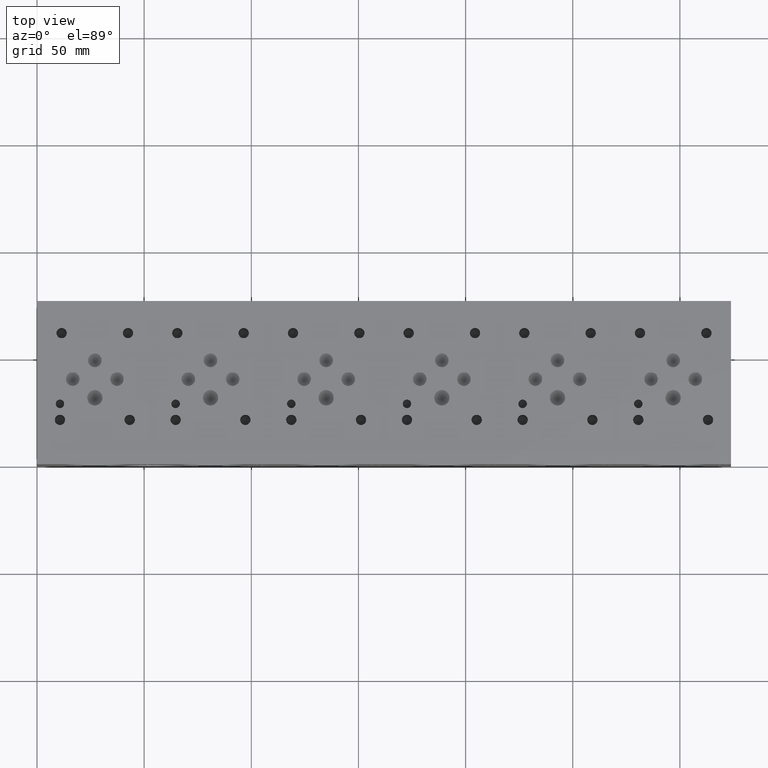
[diagram: clean part render]
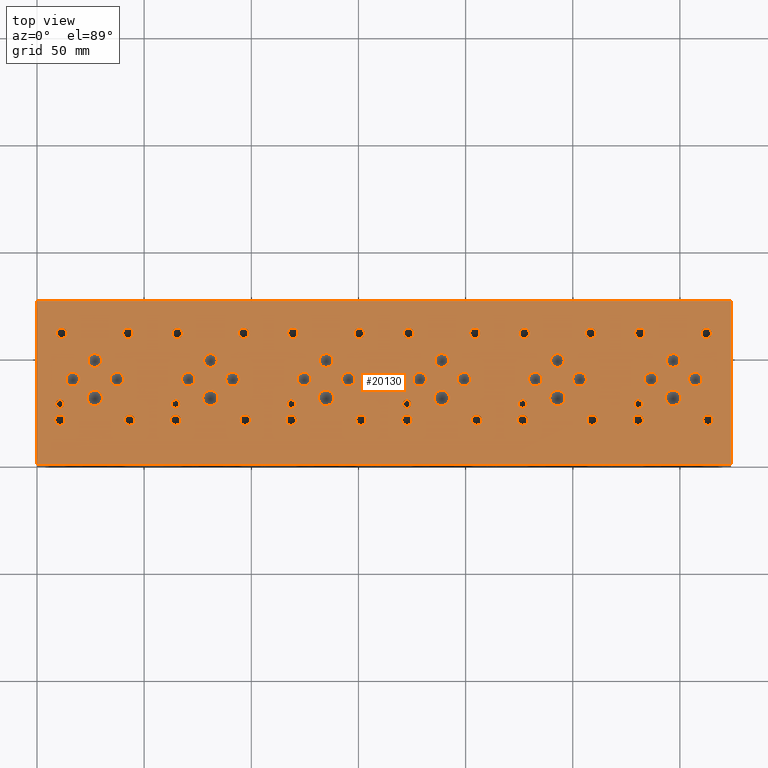
[diagram: same view with one face highlighted and labeled with its STEP entity id]
A machine part, top view. The second image highlights one B-rep face of the part: STEP entity #20130.
In plain terms, the highlighted planar face has unit normal (0, 0, 1).
Its self-contained STEP definition (entity closure, byte-faithful):
#707=CIRCLE('',#21171,1.9812);
#708=CIRCLE('',#21172,1.9812);
#711=CIRCLE('',#21177,1.9812);
#712=CIRCLE('',#21178,1.9812);
#715=CIRCLE('',#21183,1.9812);
#716=CIRCLE('',#21184,1.9812);
#719=CIRCLE('',#21189,1.9812);
#720=CIRCLE('',#21190,1.9812);
#723=CIRCLE('',#21195,1.9812);
#724=CIRCLE('',#21196,1.9812);
#727=CIRCLE('',#21201,3.5687);
#728=CIRCLE('',#21202,3.5687);
#731=CIRCLE('',#21207,3.5687);
#732=CIRCLE('',#21208,3.5687);
#735=CIRCLE('',#21213,3.5687);
#736=CIRCLE('',#21214,3.5687);
#739=CIRCLE('',#21219,3.5687);
#740=CIRCLE('',#21220,3.5687);
#743=CIRCLE('',#21225,3.5687);
#744=CIRCLE('',#21226,3.5687);
#747=CIRCLE('',#21231,3.5687);
#748=CIRCLE('',#21232,3.5687);
#751=CIRCLE('',#21237,3.175);
#752=CIRCLE('',#21238,3.175);
#755=CIRCLE('',#21243,3.175);
#756=CIRCLE('',#21244,3.175);
#759=CIRCLE('',#21249,3.175);
#760=CIRCLE('',#21250,3.175);
#763=CIRCLE('',#21255,3.175);
#764=CIRCLE('',#21256,3.175);
#767=CIRCLE('',#21261,3.175);
#768=CIRCLE('',#21262,3.175);
#771=CIRCLE('',#21267,3.175);
#772=CIRCLE('',#21268,3.175);
#775=CIRCLE('',#21273,3.175);
#776=CIRCLE('',#21274,3.175);
#779=CIRCLE('',#21279,3.175);
#780=CIRCLE('',#21280,3.175);
#783=CIRCLE('',#21285,3.175);
#784=CIRCLE('',#21286,3.175);
#787=CIRCLE('',#21291,3.175);
#788=CIRCLE('',#21292,3.175);
#791=CIRCLE('',#21297,3.175);
#792=CIRCLE('',#21298,3.175);
#795=CIRCLE('',#21303,3.175);
#796=CIRCLE('',#21304,3.175);
#799=CIRCLE('',#21309,3.175);
#800=CIRCLE('',#21310,3.175);
#803=CIRCLE('',#21315,3.175);
#804=CIRCLE('',#21316,3.175);
#807=CIRCLE('',#21321,3.175);
#808=CIRCLE('',#21322,3.175);
#811=CIRCLE('',#21327,3.175);
#812=CIRCLE('',#21328,3.175);
#815=CIRCLE('',#21333,3.175);
#816=CIRCLE('',#21334,3.175);
#819=CIRCLE('',#21339,3.175);
#820=CIRCLE('',#21340,3.175);
#823=CIRCLE('',#21345,1.9812);
#824=CIRCLE('',#21346,1.9812);
#830=CIRCLE('',#21355,2.413);
#831=CIRCLE('',#21356,2.413);
#837=CIRCLE('',#21366,2.413);
#838=CIRCLE('',#21367,2.413);
#844=CIRCLE('',#21377,2.413);
#845=CIRCLE('',#21378,2.413);
#851=CIRCLE('',#21388,2.413);
#852=CIRCLE('',#21389,2.413);
#858=CIRCLE('',#21399,2.413);
#859=CIRCLE('',#21400,2.413);
#865=CIRCLE('',#21410,2.413);
#866=CIRCLE('',#21411,2.413);
#872=CIRCLE('',#21421,2.413);
#873=CIRCLE('',#21422,2.413);
#879=CIRCLE('',#21432,2.413);
#880=CIRCLE('',#21433,2.413);
#886=CIRCLE('',#21443,2.413);
#887=CIRCLE('',#21444,2.413);
#893=CIRCLE('',#21454,2.413);
#894=CIRCLE('',#21455,2.413);
#900=CIRCLE('',#21465,2.413);
#901=CIRCLE('',#21466,2.413);
#907=CIRCLE('',#21476,2.413);
#908=CIRCLE('',#21477,2.413);
#914=CIRCLE('',#21487,2.413);
#915=CIRCLE('',#21488,2.413);
#921=CIRCLE('',#21498,2.413);
#922=CIRCLE('',#21499,2.413);
#928=CIRCLE('',#21509,2.413);
#929=CIRCLE('',#21510,2.413);
#935=CIRCLE('',#21520,2.413);
#936=CIRCLE('',#21521,2.413);
#942=CIRCLE('',#21531,2.413);
#943=CIRCLE('',#21532,2.413);
#949=CIRCLE('',#21542,2.413);
#950=CIRCLE('',#21543,2.413);
#956=CIRCLE('',#21553,2.413);
#957=CIRCLE('',#21554,2.413);
#963=CIRCLE('',#21564,2.413);
#964=CIRCLE('',#21565,2.413);
#970=CIRCLE('',#21575,2.413);
#971=CIRCLE('',#21576,2.413);
#977=CIRCLE('',#21586,2.413);
#978=CIRCLE('',#21587,2.413);
#984=CIRCLE('',#21597,2.413);
#985=CIRCLE('',#21598,2.413);
#991=CIRCLE('',#21608,2.413);
#992=CIRCLE('',#21609,2.413);
#1146=FACE_BOUND('',#3954,.T.);
#1147=FACE_BOUND('',#3955,.T.);
#1148=FACE_BOUND('',#3956,.T.);
#1149=FACE_BOUND('',#3957,.T.);
#1150=FACE_BOUND('',#3958,.T.);
#1151=FACE_BOUND('',#3959,.T.);
#1152=FACE_BOUND('',#3960,.T.);
#1153=FACE_BOUND('',#3961,.T.);
#1154=FACE_BOUND('',#3962,.T.);
#1155=FACE_BOUND('',#3963,.T.);
#1156=FACE_BOUND('',#3964,.T.);
#1157=FACE_BOUND('',#3965,.T.);
#1158=FACE_BOUND('',#3966,.T.);
#1159=FACE_BOUND('',#3967,.T.);
#1160=FACE_BOUND('',#3968,.T.);
#1161=FACE_BOUND('',#3969,.T.);
#1162=FACE_BOUND('',#3970,.T.);
#1163=FACE_BOUND('',#3971,.T.);
#1164=FACE_BOUND('',#3972,.T.);
#1165=FACE_BOUND('',#3973,.T.);
#1166=FACE_BOUND('',#3974,.T.);
#1167=FACE_BOUND('',#3975,.T.);
#1168=FACE_BOUND('',#3976,.T.);
#1169=FACE_BOUND('',#3977,.T.);
#1170=FACE_BOUND('',#3978,.T.);
#1171=FACE_BOUND('',#3979,.T.);
#1172=FACE_BOUND('',#3980,.T.);
#1173=FACE_BOUND('',#3981,.T.);
#1174=FACE_BOUND('',#3982,.T.);
#1175=FACE_BOUND('',#3983,.T.);
#1176=FACE_BOUND('',#3984,.T.);
#1177=FACE_BOUND('',#3985,.T.);
#1178=FACE_BOUND('',#3986,.T.);
#1179=FACE_BOUND('',#3987,.T.);
#1180=FACE_BOUND('',#3988,.T.);
#1181=FACE_BOUND('',#3989,.T.);
#1182=FACE_BOUND('',#3990,.T.);
#1183=FACE_BOUND('',#3991,.T.);
#1184=FACE_BOUND('',#3992,.T.);
#1185=FACE_BOUND('',#3993,.T.);
#1186=FACE_BOUND('',#3994,.T.);
#1187=FACE_BOUND('',#3995,.T.);
#1188=FACE_BOUND('',#3996,.T.);
#1189=FACE_BOUND('',#3997,.T.);
#1190=FACE_BOUND('',#3998,.T.);
#1191=FACE_BOUND('',#3999,.T.);
#1192=FACE_BOUND('',#4000,.T.);
#1193=FACE_BOUND('',#4001,.T.);
#1194=FACE_BOUND('',#4002,.T.);
#1195=FACE_BOUND('',#4003,.T.);
#1196=FACE_BOUND('',#4004,.T.);
#1197=FACE_BOUND('',#4005,.T.);
#1198=FACE_BOUND('',#4006,.T.);
#1199=FACE_BOUND('',#4007,.T.);
#1690=PLANE('',#21615);
#2745=FACE_OUTER_BOUND('',#3953,.T.);
#3953=EDGE_LOOP('',(#18065,#18066,#18067,#18068));
#3954=EDGE_LOOP('',(#18069,#18070));
#3955=EDGE_LOOP('',(#18071,#18072));
#3956=EDGE_LOOP('',(#18073,#18074));
#3957=EDGE_LOOP('',(#18075,#18076));
#3958=EDGE_LOOP('',(#18077,#18078));
#3959=EDGE_LOOP('',(#18079,#18080));
#3960=EDGE_LOOP('',(#18081,#18082));
#3961=EDGE_LOOP('',(#18083,#18084));
#3962=EDGE_LOOP('',(#18085,#18086));
#3963=EDGE_LOOP('',(#18087,#18088));
#3964=EDGE_LOOP('',(#18089,#18090));
#3965=EDGE_LOOP('',(#18091,#18092));
#3966=EDGE_LOOP('',(#18093,#18094));
#3967=EDGE_LOOP('',(#18095,#18096));
#3968=EDGE_LOOP('',(#18097,#18098));
#3969=EDGE_LOOP('',(#18099,#18100));
#3970=EDGE_LOOP('',(#18101,#18102));
#3971=EDGE_LOOP('',(#18103,#18104));
#3972=EDGE_LOOP('',(#18105,#18106));
#3973=EDGE_LOOP('',(#18107,#18108));
#3974=EDGE_LOOP('',(#18109,#18110));
#3975=EDGE_LOOP('',(#18111,#18112));
#3976=EDGE_LOOP('',(#18113,#18114));
#3977=EDGE_LOOP('',(#18115,#18116));
#3978=EDGE_LOOP('',(#18117,#18118));
#3979=EDGE_LOOP('',(#18119,#18120));
#3980=EDGE_LOOP('',(#18121,#18122));
#3981=EDGE_LOOP('',(#18123,#18124));
#3982=EDGE_LOOP('',(#18125,#18126));
#3983=EDGE_LOOP('',(#18127,#18128));
#3984=EDGE_LOOP('',(#18129,#18130));
#3985=EDGE_LOOP('',(#18131,#18132));
#3986=EDGE_LOOP('',(#18133,#18134));
#3987=EDGE_LOOP('',(#18135,#18136));
#3988=EDGE_LOOP('',(#18137,#18138));
#3989=EDGE_LOOP('',(#18139,#18140));
#3990=EDGE_LOOP('',(#18141,#18142));
#3991=EDGE_LOOP('',(#18143,#18144));
#3992=EDGE_LOOP('',(#18145,#18146));
#3993=EDGE_LOOP('',(#18147,#18148));
#3994=EDGE_LOOP('',(#18149,#18150));
#3995=EDGE_LOOP('',(#18151,#18152));
#3996=EDGE_LOOP('',(#18153,#18154));
#3997=EDGE_LOOP('',(#18155,#18156));
#3998=EDGE_LOOP('',(#18157,#18158));
#3999=EDGE_LOOP('',(#18159,#18160));
#4000=EDGE_LOOP('',(#18161,#18162));
#4001=EDGE_LOOP('',(#18163,#18164));
#4002=EDGE_LOOP('',(#18165,#18166));
#4003=EDGE_LOOP('',(#18167,#18168));
#4004=EDGE_LOOP('',(#18169,#18170));
#4005=EDGE_LOOP('',(#18171,#18172));
#4006=EDGE_LOOP('',(#18173,#18174));
#4007=EDGE_LOOP('',(#18175,#18176));
#4055=LINE('',#26536,#5695);
#5251=LINE('',#32931,#6891);
#5309=LINE('',#33202,#6949);
#5648=LINE('',#35287,#7288);
#5695=VECTOR('',#21689,10.);
#6891=VECTOR('',#23699,10.);
#6949=VECTOR('',#23811,10.);
#7288=VECTOR('',#26192,10.);
#7841=VERTEX_POINT('',#26533);
#7842=VERTEX_POINT('',#26535);
#8970=VERTEX_POINT('',#32929);
#9028=VERTEX_POINT('',#33201);
#9415=VERTEX_POINT('',#34374);
#9416=VERTEX_POINT('',#34375);
#9420=VERTEX_POINT('',#34387);
#9421=VERTEX_POINT('',#34388);
#9425=VERTEX_POINT('',#34400);
#9426=VERTEX_POINT('',#34401);
#9430=VERTEX_POINT('',#34413);
#9431=VERTEX_POINT('',#34414);
#9435=VERTEX_POINT('',#34426);
#9436=VERTEX_POINT('',#34427);
#9440=VERTEX_POINT('',#34439);
#9441=VERTEX_POINT('',#34440);
#9445=VERTEX_POINT('',#34452);
#9446=VERTEX_POINT('',#34453);
#9450=VERTEX_POINT('',#34465);
#9451=VERTEX_POINT('',#34466);
#9455=VERTEX_POINT('',#34478);
#9456=VERTEX_POINT('',#34479);
#9460=VERTEX_POINT('',#34491);
#9461=VERTEX_POINT('',#34492);
#9465=VERTEX_POINT('',#34504);
#9466=VERTEX_POINT('',#34505);
#9470=VERTEX_POINT('',#34517);
#9471=VERTEX_POINT('',#34518);
#9475=VERTEX_POINT('',#34530);
#9476=VERTEX_POINT('',#34531);
#9480=VERTEX_POINT('',#34543);
#9481=VERTEX_POINT('',#34544);
#9485=VERTEX_POINT('',#34556);
#9486=VERTEX_POINT('',#34557);
#9490=VERTEX_POINT('',#34569);
#9491=VERTEX_POINT('',#34570);
#9495=VERTEX_POINT('',#34582);
#9496=VERTEX_POINT('',#34583);
#9500=VERTEX_POINT('',#34595);
#9501=VERTEX_POINT('',#34596);
#9505=VERTEX_POINT('',#34608);
#9506=VERTEX_POINT('',#34609);
#9510=VERTEX_POINT('',#34621);
#9511=VERTEX_POINT('',#34622);
#9515=VERTEX_POINT('',#34634);
#9516=VERTEX_POINT('',#34635);
#9520=VERTEX_POINT('',#34647);
#9521=VERTEX_POINT('',#34648);
#9525=VERTEX_POINT('',#34660);
#9526=VERTEX_POINT('',#34661);
#9530=VERTEX_POINT('',#34673);
#9531=VERTEX_POINT('',#34674);
#9535=VERTEX_POINT('',#34686);
#9536=VERTEX_POINT('',#34687);
#9540=VERTEX_POINT('',#34699);
#9541=VERTEX_POINT('',#34700);
#9545=VERTEX_POINT('',#34712);
#9546=VERTEX_POINT('',#34713);
#9550=VERTEX_POINT('',#34725);
#9551=VERTEX_POINT('',#34726);
#9555=VERTEX_POINT('',#34738);
#9556=VERTEX_POINT('',#34739);
#9560=VERTEX_POINT('',#34751);
#9561=VERTEX_POINT('',#34752);
#9568=VERTEX_POINT('',#34771);
#9569=VERTEX_POINT('',#34772);
#9576=VERTEX_POINT('',#34793);
#9577=VERTEX_POINT('',#34794);
#9584=VERTEX_POINT('',#34815);
#9585=VERTEX_POINT('',#34816);
#9592=VERTEX_POINT('',#34837);
#9593=VERTEX_POINT('',#34838);
#9600=VERTEX_POINT('',#34859);
#9601=VERTEX_POINT('',#34860);
#9608=VERTEX_POINT('',#34881);
#9609=VERTEX_POINT('',#34882);
#9616=VERTEX_POINT('',#34903);
#9617=VERTEX_POINT('',#34904);
#9624=VERTEX_POINT('',#34925);
#9625=VERTEX_POINT('',#34926);
#9632=VERTEX_POINT('',#34947);
#9633=VERTEX_POINT('',#34948);
#9640=VERTEX_POINT('',#34969);
#9641=VERTEX_POINT('',#34970);
#9648=VERTEX_POINT('',#34991);
#9649=VERTEX_POINT('',#34992);
#9656=VERTEX_POINT('',#35013);
#9657=VERTEX_POINT('',#35014);
#9664=VERTEX_POINT('',#35035);
#9665=VERTEX_POINT('',#35036);
#9672=VERTEX_POINT('',#35057);
#9673=VERTEX_POINT('',#35058);
#9680=VERTEX_POINT('',#35079);
#9681=VERTEX_POINT('',#35080);
#9688=VERTEX_POINT('',#35101);
#9689=VERTEX_POINT('',#35102);
#9696=VERTEX_POINT('',#35123);
#9697=VERTEX_POINT('',#35124);
#9704=VERTEX_POINT('',#35145);
#9705=VERTEX_POINT('',#35146);
#9712=VERTEX_POINT('',#35167);
#9713=VERTEX_POINT('',#35168);
#9720=VERTEX_POINT('',#35189);
#9721=VERTEX_POINT('',#35190);
#9728=VERTEX_POINT('',#35211);
#9729=VERTEX_POINT('',#35212);
#9736=VERTEX_POINT('',#35233);
#9737=VERTEX_POINT('',#35234);
#9744=VERTEX_POINT('',#35255);
#9745=VERTEX_POINT('',#35256);
#9752=VERTEX_POINT('',#35277);
#9753=VERTEX_POINT('',#35278);
#9828=EDGE_CURVE('',#7842,#7841,#4055,.T.);
#11508=EDGE_CURVE('',#7841,#8970,#5251,.T.);
#11590=EDGE_CURVE('',#9028,#7842,#5309,.T.);
#12144=EDGE_CURVE('',#9415,#9416,#707,.T.);
#12145=EDGE_CURVE('',#9416,#9415,#708,.T.);
#12150=EDGE_CURVE('',#9420,#9421,#711,.T.);
#12151=EDGE_CURVE('',#9421,#9420,#712,.T.);
#12156=EDGE_CURVE('',#9425,#9426,#715,.T.);
#12157=EDGE_CURVE('',#9426,#9425,#716,.T.);
#12162=EDGE_CURVE('',#9430,#9431,#719,.T.);
#12163=EDGE_CURVE('',#9431,#9430,#720,.T.);
#12168=EDGE_CURVE('',#9435,#9436,#723,.T.);
#12169=EDGE_CURVE('',#9436,#9435,#724,.T.);
#12174=EDGE_CURVE('',#9440,#9441,#727,.T.);
#12175=EDGE_CURVE('',#9441,#9440,#728,.T.);
#12180=EDGE_CURVE('',#9445,#9446,#731,.T.);
#12181=EDGE_CURVE('',#9446,#9445,#732,.T.);
#12186=EDGE_CURVE('',#9450,#9451,#735,.T.);
#12187=EDGE_CURVE('',#9451,#9450,#736,.T.);
#12192=EDGE_CURVE('',#9455,#9456,#739,.T.);
#12193=EDGE_CURVE('',#9456,#9455,#740,.T.);
#12198=EDGE_CURVE('',#9460,#9461,#743,.T.);
#12199=EDGE_CURVE('',#9461,#9460,#744,.T.);
#12204=EDGE_CURVE('',#9465,#9466,#747,.T.);
#12205=EDGE_CURVE('',#9466,#9465,#748,.T.);
#12210=EDGE_CURVE('',#9470,#9471,#751,.T.);
#12211=EDGE_CURVE('',#9471,#9470,#752,.T.);
#12216=EDGE_CURVE('',#9475,#9476,#755,.T.);
#12217=EDGE_CURVE('',#9476,#9475,#756,.T.);
#12222=EDGE_CURVE('',#9480,#9481,#759,.T.);
#12223=EDGE_CURVE('',#9481,#9480,#760,.T.);
#12228=EDGE_CURVE('',#9485,#9486,#763,.T.);
#12229=EDGE_CURVE('',#9486,#9485,#764,.T.);
#12234=EDGE_CURVE('',#9490,#9491,#767,.T.);
#12235=EDGE_CURVE('',#9491,#9490,#768,.T.);
#12240=EDGE_CURVE('',#9495,#9496,#771,.T.);
#12241=EDGE_CURVE('',#9496,#9495,#772,.T.);
#12246=EDGE_CURVE('',#9500,#9501,#775,.T.);
#12247=EDGE_CURVE('',#9501,#9500,#776,.T.);
#12252=EDGE_CURVE('',#9505,#9506,#779,.T.);
#12253=EDGE_CURVE('',#9506,#9505,#780,.T.);
#12258=EDGE_CURVE('',#9510,#9511,#783,.T.);
#12259=EDGE_CURVE('',#9511,#9510,#784,.T.);
#12264=EDGE_CURVE('',#9515,#9516,#787,.T.);
#12265=EDGE_CURVE('',#9516,#9515,#788,.T.);
#12270=EDGE_CURVE('',#9520,#9521,#791,.T.);
#12271=EDGE_CURVE('',#9521,#9520,#792,.T.);
#12276=EDGE_CURVE('',#9525,#9526,#795,.T.);
#12277=EDGE_CURVE('',#9526,#9525,#796,.T.);
#12282=EDGE_CURVE('',#9530,#9531,#799,.T.);
#12283=EDGE_CURVE('',#9531,#9530,#800,.T.);
#12288=EDGE_CURVE('',#9535,#9536,#803,.T.);
#12289=EDGE_CURVE('',#9536,#9535,#804,.T.);
#12294=EDGE_CURVE('',#9540,#9541,#807,.T.);
#12295=EDGE_CURVE('',#9541,#9540,#808,.T.);
#12300=EDGE_CURVE('',#9545,#9546,#811,.T.);
#12301=EDGE_CURVE('',#9546,#9545,#812,.T.);
#12306=EDGE_CURVE('',#9550,#9551,#815,.T.);
#12307=EDGE_CURVE('',#9551,#9550,#816,.T.);
#12312=EDGE_CURVE('',#9555,#9556,#819,.T.);
#12313=EDGE_CURVE('',#9556,#9555,#820,.T.);
#12318=EDGE_CURVE('',#9560,#9561,#823,.T.);
#12319=EDGE_CURVE('',#9561,#9560,#824,.T.);
#12327=EDGE_CURVE('',#9568,#9569,#830,.T.);
#12328=EDGE_CURVE('',#9569,#9568,#831,.T.);
#12337=EDGE_CURVE('',#9576,#9577,#837,.T.);
#12338=EDGE_CURVE('',#9577,#9576,#838,.T.);
#12347=EDGE_CURVE('',#9584,#9585,#844,.T.);
#12348=EDGE_CURVE('',#9585,#9584,#845,.T.);
#12357=EDGE_CURVE('',#9592,#9593,#851,.T.);
#12358=EDGE_CURVE('',#9593,#9592,#852,.T.);
#12367=EDGE_CURVE('',#9600,#9601,#858,.T.);
#12368=EDGE_CURVE('',#9601,#9600,#859,.T.);
#12377=EDGE_CURVE('',#9608,#9609,#865,.T.);
#12378=EDGE_CURVE('',#9609,#9608,#866,.T.);
#12387=EDGE_CURVE('',#9616,#9617,#872,.T.);
#12388=EDGE_CURVE('',#9617,#9616,#873,.T.);
#12397=EDGE_CURVE('',#9624,#9625,#879,.T.);
#12398=EDGE_CURVE('',#9625,#9624,#880,.T.);
#12407=EDGE_CURVE('',#9632,#9633,#886,.T.);
#12408=EDGE_CURVE('',#9633,#9632,#887,.T.);
#12417=EDGE_CURVE('',#9640,#9641,#893,.T.);
#12418=EDGE_CURVE('',#9641,#9640,#894,.T.);
#12427=EDGE_CURVE('',#9648,#9649,#900,.T.);
#12428=EDGE_CURVE('',#9649,#9648,#901,.T.);
#12437=EDGE_CURVE('',#9656,#9657,#907,.T.);
#12438=EDGE_CURVE('',#9657,#9656,#908,.T.);
#12447=EDGE_CURVE('',#9664,#9665,#914,.T.);
#12448=EDGE_CURVE('',#9665,#9664,#915,.T.);
#12457=EDGE_CURVE('',#9672,#9673,#921,.T.);
#12458=EDGE_CURVE('',#9673,#9672,#922,.T.);
#12467=EDGE_CURVE('',#9680,#9681,#928,.T.);
#12468=EDGE_CURVE('',#9681,#9680,#929,.T.);
#12477=EDGE_CURVE('',#9688,#9689,#935,.T.);
#12478=EDGE_CURVE('',#9689,#9688,#936,.T.);
#12487=EDGE_CURVE('',#9696,#9697,#942,.T.);
#12488=EDGE_CURVE('',#9697,#9696,#943,.T.);
#12497=EDGE_CURVE('',#9704,#9705,#949,.T.);
#12498=EDGE_CURVE('',#9705,#9704,#950,.T.);
#12507=EDGE_CURVE('',#9712,#9713,#956,.T.);
#12508=EDGE_CURVE('',#9713,#9712,#957,.T.);
#12517=EDGE_CURVE('',#9720,#9721,#963,.T.);
#12518=EDGE_CURVE('',#9721,#9720,#964,.T.);
#12527=EDGE_CURVE('',#9728,#9729,#970,.T.);
#12528=EDGE_CURVE('',#9729,#9728,#971,.T.);
#12537=EDGE_CURVE('',#9736,#9737,#977,.T.);
#12538=EDGE_CURVE('',#9737,#9736,#978,.T.);
#12547=EDGE_CURVE('',#9744,#9745,#984,.T.);
#12548=EDGE_CURVE('',#9745,#9744,#985,.T.);
#12557=EDGE_CURVE('',#9752,#9753,#991,.T.);
#12558=EDGE_CURVE('',#9753,#9752,#992,.T.);
#12562=EDGE_CURVE('',#8970,#9028,#5648,.T.);
#18065=ORIENTED_EDGE('',*,*,#9828,.T.);
#18066=ORIENTED_EDGE('',*,*,#11508,.T.);
#18067=ORIENTED_EDGE('',*,*,#12562,.T.);
#18068=ORIENTED_EDGE('',*,*,#11590,.T.);
#18069=ORIENTED_EDGE('',*,*,#12144,.T.);
#18070=ORIENTED_EDGE('',*,*,#12145,.T.);
#18071=ORIENTED_EDGE('',*,*,#12150,.T.);
#18072=ORIENTED_EDGE('',*,*,#12151,.T.);
#18073=ORIENTED_EDGE('',*,*,#12156,.T.);
#18074=ORIENTED_EDGE('',*,*,#12157,.T.);
#18075=ORIENTED_EDGE('',*,*,#12162,.T.);
#18076=ORIENTED_EDGE('',*,*,#12163,.T.);
#18077=ORIENTED_EDGE('',*,*,#12168,.T.);
#18078=ORIENTED_EDGE('',*,*,#12169,.T.);
#18079=ORIENTED_EDGE('',*,*,#12174,.T.);
#18080=ORIENTED_EDGE('',*,*,#12175,.T.);
#18081=ORIENTED_EDGE('',*,*,#12180,.T.);
#18082=ORIENTED_EDGE('',*,*,#12181,.T.);
#18083=ORIENTED_EDGE('',*,*,#12186,.T.);
#18084=ORIENTED_EDGE('',*,*,#12187,.T.);
#18085=ORIENTED_EDGE('',*,*,#12192,.T.);
#18086=ORIENTED_EDGE('',*,*,#12193,.T.);
#18087=ORIENTED_EDGE('',*,*,#12198,.T.);
#18088=ORIENTED_EDGE('',*,*,#12199,.T.);
#18089=ORIENTED_EDGE('',*,*,#12204,.T.);
#18090=ORIENTED_EDGE('',*,*,#12205,.T.);
#18091=ORIENTED_EDGE('',*,*,#12210,.T.);
#18092=ORIENTED_EDGE('',*,*,#12211,.T.);
#18093=ORIENTED_EDGE('',*,*,#12216,.T.);
#18094=ORIENTED_EDGE('',*,*,#12217,.T.);
#18095=ORIENTED_EDGE('',*,*,#12222,.T.);
#18096=ORIENTED_EDGE('',*,*,#12223,.T.);
#18097=ORIENTED_EDGE('',*,*,#12228,.T.);
#18098=ORIENTED_EDGE('',*,*,#12229,.T.);
#18099=ORIENTED_EDGE('',*,*,#12234,.T.);
#18100=ORIENTED_EDGE('',*,*,#12235,.T.);
#18101=ORIENTED_EDGE('',*,*,#12240,.T.);
#18102=ORIENTED_EDGE('',*,*,#12241,.T.);
#18103=ORIENTED_EDGE('',*,*,#12246,.T.);
#18104=ORIENTED_EDGE('',*,*,#12247,.T.);
#18105=ORIENTED_EDGE('',*,*,#12252,.T.);
#18106=ORIENTED_EDGE('',*,*,#12253,.T.);
#18107=ORIENTED_EDGE('',*,*,#12258,.T.);
#18108=ORIENTED_EDGE('',*,*,#12259,.T.);
#18109=ORIENTED_EDGE('',*,*,#12264,.T.);
#18110=ORIENTED_EDGE('',*,*,#12265,.T.);
#18111=ORIENTED_EDGE('',*,*,#12270,.T.);
#18112=ORIENTED_EDGE('',*,*,#12271,.T.);
#18113=ORIENTED_EDGE('',*,*,#12276,.T.);
#18114=ORIENTED_EDGE('',*,*,#12277,.T.);
#18115=ORIENTED_EDGE('',*,*,#12282,.T.);
#18116=ORIENTED_EDGE('',*,*,#12283,.T.);
#18117=ORIENTED_EDGE('',*,*,#12288,.T.);
#18118=ORIENTED_EDGE('',*,*,#12289,.T.);
#18119=ORIENTED_EDGE('',*,*,#12294,.T.);
#18120=ORIENTED_EDGE('',*,*,#12295,.T.);
#18121=ORIENTED_EDGE('',*,*,#12300,.T.);
#18122=ORIENTED_EDGE('',*,*,#12301,.T.);
#18123=ORIENTED_EDGE('',*,*,#12306,.T.);
#18124=ORIENTED_EDGE('',*,*,#12307,.T.);
#18125=ORIENTED_EDGE('',*,*,#12312,.T.);
#18126=ORIENTED_EDGE('',*,*,#12313,.T.);
#18127=ORIENTED_EDGE('',*,*,#12318,.T.);
#18128=ORIENTED_EDGE('',*,*,#12319,.T.);
#18129=ORIENTED_EDGE('',*,*,#12327,.T.);
#18130=ORIENTED_EDGE('',*,*,#12328,.T.);
#18131=ORIENTED_EDGE('',*,*,#12337,.T.);
#18132=ORIENTED_EDGE('',*,*,#12338,.T.);
#18133=ORIENTED_EDGE('',*,*,#12347,.T.);
#18134=ORIENTED_EDGE('',*,*,#12348,.T.);
#18135=ORIENTED_EDGE('',*,*,#12357,.T.);
#18136=ORIENTED_EDGE('',*,*,#12358,.T.);
#18137=ORIENTED_EDGE('',*,*,#12367,.T.);
#18138=ORIENTED_EDGE('',*,*,#12368,.T.);
#18139=ORIENTED_EDGE('',*,*,#12377,.T.);
#18140=ORIENTED_EDGE('',*,*,#12378,.T.);
#18141=ORIENTED_EDGE('',*,*,#12387,.T.);
#18142=ORIENTED_EDGE('',*,*,#12388,.T.);
#18143=ORIENTED_EDGE('',*,*,#12397,.T.);
#18144=ORIENTED_EDGE('',*,*,#12398,.T.);
#18145=ORIENTED_EDGE('',*,*,#12407,.T.);
#18146=ORIENTED_EDGE('',*,*,#12408,.T.);
#18147=ORIENTED_EDGE('',*,*,#12417,.T.);
#18148=ORIENTED_EDGE('',*,*,#12418,.T.);
#18149=ORIENTED_EDGE('',*,*,#12427,.T.);
#18150=ORIENTED_EDGE('',*,*,#12428,.T.);
#18151=ORIENTED_EDGE('',*,*,#12437,.T.);
#18152=ORIENTED_EDGE('',*,*,#12438,.T.);
#18153=ORIENTED_EDGE('',*,*,#12447,.T.);
#18154=ORIENTED_EDGE('',*,*,#12448,.T.);
#18155=ORIENTED_EDGE('',*,*,#12457,.T.);
#18156=ORIENTED_EDGE('',*,*,#12458,.T.);
#18157=ORIENTED_EDGE('',*,*,#12467,.T.);
#18158=ORIENTED_EDGE('',*,*,#12468,.T.);
#18159=ORIENTED_EDGE('',*,*,#12477,.T.);
#18160=ORIENTED_EDGE('',*,*,#12478,.T.);
#18161=ORIENTED_EDGE('',*,*,#12487,.T.);
#18162=ORIENTED_EDGE('',*,*,#12488,.T.);
#18163=ORIENTED_EDGE('',*,*,#12497,.T.);
#18164=ORIENTED_EDGE('',*,*,#12498,.T.);
#18165=ORIENTED_EDGE('',*,*,#12507,.T.);
#18166=ORIENTED_EDGE('',*,*,#12508,.T.);
#18167=ORIENTED_EDGE('',*,*,#12517,.T.);
#18168=ORIENTED_EDGE('',*,*,#12518,.T.);
#18169=ORIENTED_EDGE('',*,*,#12527,.T.);
#18170=ORIENTED_EDGE('',*,*,#12528,.T.);
#18171=ORIENTED_EDGE('',*,*,#12537,.T.);
#18172=ORIENTED_EDGE('',*,*,#12538,.T.);
#18173=ORIENTED_EDGE('',*,*,#12547,.T.);
#18174=ORIENTED_EDGE('',*,*,#12548,.T.);
#18175=ORIENTED_EDGE('',*,*,#12557,.T.);
#18176=ORIENTED_EDGE('',*,*,#12558,.T.);
#20130=ADVANCED_FACE('',(#2745,#1146,#1147,#1148,#1149,#1150,#1151,#1152,
#1153,#1154,#1155,#1156,#1157,#1158,#1159,#1160,#1161,#1162,#1163,#1164,
#1165,#1166,#1167,#1168,#1169,#1170,#1171,#1172,#1173,#1174,#1175,#1176,
#1177,#1178,#1179,#1180,#1181,#1182,#1183,#1184,#1185,#1186,#1187,#1188,
#1189,#1190,#1191,#1192,#1193,#1194,#1195,#1196,#1197,#1198,#1199),#1690,
 .T.);
#21171=AXIS2_PLACEMENT_3D('',#34376,#25176,#25177);
#21172=AXIS2_PLACEMENT_3D('',#34377,#25178,#25179);
#21177=AXIS2_PLACEMENT_3D('',#34389,#25190,#25191);
#21178=AXIS2_PLACEMENT_3D('',#34390,#25192,#25193);
#21183=AXIS2_PLACEMENT_3D('',#34402,#25204,#25205);
#21184=AXIS2_PLACEMENT_3D('',#34403,#25206,#25207);
#21189=AXIS2_PLACEMENT_3D('',#34415,#25218,#25219);
#21190=AXIS2_PLACEMENT_3D('',#34416,#25220,#25221);
#21195=AXIS2_PLACEMENT_3D('',#34428,#25232,#25233);
#21196=AXIS2_PLACEMENT_3D('',#34429,#25234,#25235);
#21201=AXIS2_PLACEMENT_3D('',#34441,#25246,#25247);
#21202=AXIS2_PLACEMENT_3D('',#34442,#25248,#25249);
#21207=AXIS2_PLACEMENT_3D('',#34454,#25260,#25261);
#21208=AXIS2_PLACEMENT_3D('',#34455,#25262,#25263);
#21213=AXIS2_PLACEMENT_3D('',#34467,#25274,#25275);
#21214=AXIS2_PLACEMENT_3D('',#34468,#25276,#25277);
#21219=AXIS2_PLACEMENT_3D('',#34480,#25288,#25289);
#21220=AXIS2_PLACEMENT_3D('',#34481,#25290,#25291);
#21225=AXIS2_PLACEMENT_3D('',#34493,#25302,#25303);
#21226=AXIS2_PLACEMENT_3D('',#34494,#25304,#25305);
#21231=AXIS2_PLACEMENT_3D('',#34506,#25316,#25317);
#21232=AXIS2_PLACEMENT_3D('',#34507,#25318,#25319);
#21237=AXIS2_PLACEMENT_3D('',#34519,#25330,#25331);
#21238=AXIS2_PLACEMENT_3D('',#34520,#25332,#25333);
#21243=AXIS2_PLACEMENT_3D('',#34532,#25344,#25345);
#21244=AXIS2_PLACEMENT_3D('',#34533,#25346,#25347);
#21249=AXIS2_PLACEMENT_3D('',#34545,#25358,#25359);
#21250=AXIS2_PLACEMENT_3D('',#34546,#25360,#25361);
#21255=AXIS2_PLACEMENT_3D('',#34558,#25372,#25373);
#21256=AXIS2_PLACEMENT_3D('',#34559,#25374,#25375);
#21261=AXIS2_PLACEMENT_3D('',#34571,#25386,#25387);
#21262=AXIS2_PLACEMENT_3D('',#34572,#25388,#25389);
#21267=AXIS2_PLACEMENT_3D('',#34584,#25400,#25401);
#21268=AXIS2_PLACEMENT_3D('',#34585,#25402,#25403);
#21273=AXIS2_PLACEMENT_3D('',#34597,#25414,#25415);
#21274=AXIS2_PLACEMENT_3D('',#34598,#25416,#25417);
#21279=AXIS2_PLACEMENT_3D('',#34610,#25428,#25429);
#21280=AXIS2_PLACEMENT_3D('',#34611,#25430,#25431);
#21285=AXIS2_PLACEMENT_3D('',#34623,#25442,#25443);
#21286=AXIS2_PLACEMENT_3D('',#34624,#25444,#25445);
#21291=AXIS2_PLACEMENT_3D('',#34636,#25456,#25457);
#21292=AXIS2_PLACEMENT_3D('',#34637,#25458,#25459);
#21297=AXIS2_PLACEMENT_3D('',#34649,#25470,#25471);
#21298=AXIS2_PLACEMENT_3D('',#34650,#25472,#25473);
#21303=AXIS2_PLACEMENT_3D('',#34662,#25484,#25485);
#21304=AXIS2_PLACEMENT_3D('',#34663,#25486,#25487);
#21309=AXIS2_PLACEMENT_3D('',#34675,#25498,#25499);
#21310=AXIS2_PLACEMENT_3D('',#34676,#25500,#25501);
#21315=AXIS2_PLACEMENT_3D('',#34688,#25512,#25513);
#21316=AXIS2_PLACEMENT_3D('',#34689,#25514,#25515);
#21321=AXIS2_PLACEMENT_3D('',#34701,#25526,#25527);
#21322=AXIS2_PLACEMENT_3D('',#34702,#25528,#25529);
#21327=AXIS2_PLACEMENT_3D('',#34714,#25540,#25541);
#21328=AXIS2_PLACEMENT_3D('',#34715,#25542,#25543);
#21333=AXIS2_PLACEMENT_3D('',#34727,#25554,#25555);
#21334=AXIS2_PLACEMENT_3D('',#34728,#25556,#25557);
#21339=AXIS2_PLACEMENT_3D('',#34740,#25568,#25569);
#21340=AXIS2_PLACEMENT_3D('',#34741,#25570,#25571);
#21345=AXIS2_PLACEMENT_3D('',#34753,#25582,#25583);
#21346=AXIS2_PLACEMENT_3D('',#34754,#25584,#25585);
#21355=AXIS2_PLACEMENT_3D('',#34773,#25604,#25605);
#21356=AXIS2_PLACEMENT_3D('',#34774,#25606,#25607);
#21366=AXIS2_PLACEMENT_3D('',#34795,#25629,#25630);
#21367=AXIS2_PLACEMENT_3D('',#34796,#25631,#25632);
#21377=AXIS2_PLACEMENT_3D('',#34817,#25654,#25655);
#21378=AXIS2_PLACEMENT_3D('',#34818,#25656,#25657);
#21388=AXIS2_PLACEMENT_3D('',#34839,#25679,#25680);
#21389=AXIS2_PLACEMENT_3D('',#34840,#25681,#25682);
#21399=AXIS2_PLACEMENT_3D('',#34861,#25704,#25705);
#21400=AXIS2_PLACEMENT_3D('',#34862,#25706,#25707);
#21410=AXIS2_PLACEMENT_3D('',#34883,#25729,#25730);
#21411=AXIS2_PLACEMENT_3D('',#34884,#25731,#25732);
#21421=AXIS2_PLACEMENT_3D('',#34905,#25754,#25755);
#21422=AXIS2_PLACEMENT_3D('',#34906,#25756,#25757);
#21432=AXIS2_PLACEMENT_3D('',#34927,#25779,#25780);
#21433=AXIS2_PLACEMENT_3D('',#34928,#25781,#25782);
#21443=AXIS2_PLACEMENT_3D('',#34949,#25804,#25805);
#21444=AXIS2_PLACEMENT_3D('',#34950,#25806,#25807);
#21454=AXIS2_PLACEMENT_3D('',#34971,#25829,#25830);
#21455=AXIS2_PLACEMENT_3D('',#34972,#25831,#25832);
#21465=AXIS2_PLACEMENT_3D('',#34993,#25854,#25855);
#21466=AXIS2_PLACEMENT_3D('',#34994,#25856,#25857);
#21476=AXIS2_PLACEMENT_3D('',#35015,#25879,#25880);
#21477=AXIS2_PLACEMENT_3D('',#35016,#25881,#25882);
#21487=AXIS2_PLACEMENT_3D('',#35037,#25904,#25905);
#21488=AXIS2_PLACEMENT_3D('',#35038,#25906,#25907);
#21498=AXIS2_PLACEMENT_3D('',#35059,#25929,#25930);
#21499=AXIS2_PLACEMENT_3D('',#35060,#25931,#25932);
#21509=AXIS2_PLACEMENT_3D('',#35081,#25954,#25955);
#21510=AXIS2_PLACEMENT_3D('',#35082,#25956,#25957);
#21520=AXIS2_PLACEMENT_3D('',#35103,#25979,#25980);
#21521=AXIS2_PLACEMENT_3D('',#35104,#25981,#25982);
#21531=AXIS2_PLACEMENT_3D('',#35125,#26004,#26005);
#21532=AXIS2_PLACEMENT_3D('',#35126,#26006,#26007);
#21542=AXIS2_PLACEMENT_3D('',#35147,#26029,#26030);
#21543=AXIS2_PLACEMENT_3D('',#35148,#26031,#26032);
#21553=AXIS2_PLACEMENT_3D('',#35169,#26054,#26055);
#21554=AXIS2_PLACEMENT_3D('',#35170,#26056,#26057);
#21564=AXIS2_PLACEMENT_3D('',#35191,#26079,#26080);
#21565=AXIS2_PLACEMENT_3D('',#35192,#26081,#26082);
#21575=AXIS2_PLACEMENT_3D('',#35213,#26104,#26105);
#21576=AXIS2_PLACEMENT_3D('',#35214,#26106,#26107);
#21586=AXIS2_PLACEMENT_3D('',#35235,#26129,#26130);
#21587=AXIS2_PLACEMENT_3D('',#35236,#26131,#26132);
#21597=AXIS2_PLACEMENT_3D('',#35257,#26154,#26155);
#21598=AXIS2_PLACEMENT_3D('',#35258,#26156,#26157);
#21608=AXIS2_PLACEMENT_3D('',#35279,#26179,#26180);
#21609=AXIS2_PLACEMENT_3D('',#35280,#26181,#26182);
#21615=AXIS2_PLACEMENT_3D('',#35290,#26197,#26198);
#21689=DIRECTION('',(1.,0.,0.));
#23699=DIRECTION('',(0.,1.,0.));
#23811=DIRECTION('',(0.,-1.,0.));
#25176=DIRECTION('center_axis',(0.,0.,-1.));
#25177=DIRECTION('ref_axis',(1.,0.,0.));
#25178=DIRECTION('center_axis',(0.,0.,-1.));
#25179=DIRECTION('ref_axis',(1.,0.,0.));
#25190=DIRECTION('center_axis',(0.,0.,-1.));
#25191=DIRECTION('ref_axis',(1.,0.,0.));
#25192=DIRECTION('center_axis',(0.,0.,-1.));
#25193=DIRECTION('ref_axis',(1.,0.,0.));
#25204=DIRECTION('center_axis',(0.,0.,-1.));
#25205=DIRECTION('ref_axis',(1.,0.,0.));
#25206=DIRECTION('center_axis',(0.,0.,-1.));
#25207=DIRECTION('ref_axis',(1.,0.,0.));
#25218=DIRECTION('center_axis',(0.,0.,-1.));
#25219=DIRECTION('ref_axis',(1.,0.,0.));
#25220=DIRECTION('center_axis',(0.,0.,-1.));
#25221=DIRECTION('ref_axis',(1.,0.,0.));
#25232=DIRECTION('center_axis',(0.,0.,-1.));
#25233=DIRECTION('ref_axis',(1.,0.,0.));
#25234=DIRECTION('center_axis',(0.,0.,-1.));
#25235=DIRECTION('ref_axis',(1.,0.,0.));
#25246=DIRECTION('center_axis',(0.,0.,-1.));
#25247=DIRECTION('ref_axis',(1.,0.,0.));
#25248=DIRECTION('center_axis',(0.,0.,-1.));
#25249=DIRECTION('ref_axis',(1.,0.,0.));
#25260=DIRECTION('center_axis',(0.,0.,-1.));
#25261=DIRECTION('ref_axis',(1.,0.,0.));
#25262=DIRECTION('center_axis',(0.,0.,-1.));
#25263=DIRECTION('ref_axis',(1.,0.,0.));
#25274=DIRECTION('center_axis',(0.,0.,-1.));
#25275=DIRECTION('ref_axis',(1.,0.,0.));
#25276=DIRECTION('center_axis',(0.,0.,-1.));
#25277=DIRECTION('ref_axis',(1.,0.,0.));
#25288=DIRECTION('center_axis',(0.,0.,-1.));
#25289=DIRECTION('ref_axis',(1.,0.,0.));
#25290=DIRECTION('center_axis',(0.,0.,-1.));
#25291=DIRECTION('ref_axis',(1.,0.,0.));
#25302=DIRECTION('center_axis',(0.,0.,-1.));
#25303=DIRECTION('ref_axis',(1.,0.,0.));
#25304=DIRECTION('center_axis',(0.,0.,-1.));
#25305=DIRECTION('ref_axis',(1.,0.,0.));
#25316=DIRECTION('center_axis',(0.,0.,-1.));
#25317=DIRECTION('ref_axis',(1.,0.,0.));
#25318=DIRECTION('center_axis',(0.,0.,-1.));
#25319=DIRECTION('ref_axis',(1.,0.,0.));
#25330=DIRECTION('center_axis',(0.,0.,-1.));
#25331=DIRECTION('ref_axis',(1.,0.,0.));
#25332=DIRECTION('center_axis',(0.,0.,-1.));
#25333=DIRECTION('ref_axis',(1.,0.,0.));
#25344=DIRECTION('center_axis',(0.,0.,-1.));
#25345=DIRECTION('ref_axis',(1.,0.,0.));
#25346=DIRECTION('center_axis',(0.,0.,-1.));
#25347=DIRECTION('ref_axis',(1.,0.,0.));
#25358=DIRECTION('center_axis',(0.,0.,-1.));
#25359=DIRECTION('ref_axis',(1.,0.,0.));
#25360=DIRECTION('center_axis',(0.,0.,-1.));
#25361=DIRECTION('ref_axis',(1.,0.,0.));
#25372=DIRECTION('center_axis',(0.,0.,-1.));
#25373=DIRECTION('ref_axis',(1.,0.,0.));
#25374=DIRECTION('center_axis',(0.,0.,-1.));
#25375=DIRECTION('ref_axis',(1.,0.,0.));
#25386=DIRECTION('center_axis',(0.,0.,-1.));
#25387=DIRECTION('ref_axis',(1.,0.,0.));
#25388=DIRECTION('center_axis',(0.,0.,-1.));
#25389=DIRECTION('ref_axis',(1.,0.,0.));
#25400=DIRECTION('center_axis',(0.,0.,-1.));
#25401=DIRECTION('ref_axis',(1.,0.,0.));
#25402=DIRECTION('center_axis',(0.,0.,-1.));
#25403=DIRECTION('ref_axis',(1.,0.,0.));
#25414=DIRECTION('center_axis',(0.,0.,-1.));
#25415=DIRECTION('ref_axis',(1.,0.,0.));
#25416=DIRECTION('center_axis',(0.,0.,-1.));
#25417=DIRECTION('ref_axis',(1.,0.,0.));
#25428=DIRECTION('center_axis',(0.,0.,-1.));
#25429=DIRECTION('ref_axis',(1.,0.,0.));
#25430=DIRECTION('center_axis',(0.,0.,-1.));
#25431=DIRECTION('ref_axis',(1.,0.,0.));
#25442=DIRECTION('center_axis',(0.,0.,-1.));
#25443=DIRECTION('ref_axis',(1.,0.,0.));
#25444=DIRECTION('center_axis',(0.,0.,-1.));
#25445=DIRECTION('ref_axis',(1.,0.,0.));
#25456=DIRECTION('center_axis',(0.,0.,-1.));
#25457=DIRECTION('ref_axis',(1.,0.,0.));
#25458=DIRECTION('center_axis',(0.,0.,-1.));
#25459=DIRECTION('ref_axis',(1.,0.,0.));
#25470=DIRECTION('center_axis',(0.,0.,-1.));
#25471=DIRECTION('ref_axis',(1.,0.,0.));
#25472=DIRECTION('center_axis',(0.,0.,-1.));
#25473=DIRECTION('ref_axis',(1.,0.,0.));
#25484=DIRECTION('center_axis',(0.,0.,-1.));
#25485=DIRECTION('ref_axis',(1.,0.,0.));
#25486=DIRECTION('center_axis',(0.,0.,-1.));
#25487=DIRECTION('ref_axis',(1.,0.,0.));
#25498=DIRECTION('center_axis',(0.,0.,-1.));
#25499=DIRECTION('ref_axis',(1.,0.,0.));
#25500=DIRECTION('center_axis',(0.,0.,-1.));
#25501=DIRECTION('ref_axis',(1.,0.,0.));
#25512=DIRECTION('center_axis',(0.,0.,-1.));
#25513=DIRECTION('ref_axis',(1.,0.,0.));
#25514=DIRECTION('center_axis',(0.,0.,-1.));
#25515=DIRECTION('ref_axis',(1.,0.,0.));
#25526=DIRECTION('center_axis',(0.,0.,-1.));
#25527=DIRECTION('ref_axis',(1.,0.,0.));
#25528=DIRECTION('center_axis',(0.,0.,-1.));
#25529=DIRECTION('ref_axis',(1.,0.,0.));
#25540=DIRECTION('center_axis',(0.,0.,-1.));
#25541=DIRECTION('ref_axis',(1.,0.,0.));
#25542=DIRECTION('center_axis',(0.,0.,-1.));
#25543=DIRECTION('ref_axis',(1.,0.,0.));
#25554=DIRECTION('center_axis',(0.,0.,-1.));
#25555=DIRECTION('ref_axis',(1.,0.,0.));
#25556=DIRECTION('center_axis',(0.,0.,-1.));
#25557=DIRECTION('ref_axis',(1.,0.,0.));
#25568=DIRECTION('center_axis',(0.,0.,-1.));
#25569=DIRECTION('ref_axis',(1.,0.,0.));
#25570=DIRECTION('center_axis',(0.,0.,-1.));
#25571=DIRECTION('ref_axis',(1.,0.,0.));
#25582=DIRECTION('center_axis',(0.,0.,-1.));
#25583=DIRECTION('ref_axis',(1.,0.,0.));
#25584=DIRECTION('center_axis',(0.,0.,-1.));
#25585=DIRECTION('ref_axis',(1.,0.,0.));
#25604=DIRECTION('center_axis',(0.,0.,-1.));
#25605=DIRECTION('ref_axis',(1.,0.,0.));
#25606=DIRECTION('center_axis',(0.,0.,-1.));
#25607=DIRECTION('ref_axis',(1.,0.,0.));
#25629=DIRECTION('center_axis',(0.,0.,-1.));
#25630=DIRECTION('ref_axis',(1.,0.,0.));
#25631=DIRECTION('center_axis',(0.,0.,-1.));
#25632=DIRECTION('ref_axis',(1.,0.,0.));
#25654=DIRECTION('center_axis',(0.,0.,-1.));
#25655=DIRECTION('ref_axis',(1.,0.,0.));
#25656=DIRECTION('center_axis',(0.,0.,-1.));
#25657=DIRECTION('ref_axis',(1.,0.,0.));
#25679=DIRECTION('center_axis',(0.,0.,-1.));
#25680=DIRECTION('ref_axis',(1.,0.,0.));
#25681=DIRECTION('center_axis',(0.,0.,-1.));
#25682=DIRECTION('ref_axis',(1.,0.,0.));
#25704=DIRECTION('center_axis',(0.,0.,-1.));
#25705=DIRECTION('ref_axis',(1.,0.,0.));
#25706=DIRECTION('center_axis',(0.,0.,-1.));
#25707=DIRECTION('ref_axis',(1.,0.,0.));
#25729=DIRECTION('center_axis',(0.,0.,-1.));
#25730=DIRECTION('ref_axis',(1.,0.,0.));
#25731=DIRECTION('center_axis',(0.,0.,-1.));
#25732=DIRECTION('ref_axis',(1.,0.,0.));
#25754=DIRECTION('center_axis',(0.,0.,-1.));
#25755=DIRECTION('ref_axis',(1.,0.,0.));
#25756=DIRECTION('center_axis',(0.,0.,-1.));
#25757=DIRECTION('ref_axis',(1.,0.,0.));
#25779=DIRECTION('center_axis',(0.,0.,-1.));
#25780=DIRECTION('ref_axis',(1.,0.,0.));
#25781=DIRECTION('center_axis',(0.,0.,-1.));
#25782=DIRECTION('ref_axis',(1.,0.,0.));
#25804=DIRECTION('center_axis',(0.,0.,-1.));
#25805=DIRECTION('ref_axis',(1.,0.,0.));
#25806=DIRECTION('center_axis',(0.,0.,-1.));
#25807=DIRECTION('ref_axis',(1.,0.,0.));
#25829=DIRECTION('center_axis',(0.,0.,-1.));
#25830=DIRECTION('ref_axis',(1.,0.,0.));
#25831=DIRECTION('center_axis',(0.,0.,-1.));
#25832=DIRECTION('ref_axis',(1.,0.,0.));
#25854=DIRECTION('center_axis',(0.,0.,-1.));
#25855=DIRECTION('ref_axis',(1.,0.,0.));
#25856=DIRECTION('center_axis',(0.,0.,-1.));
#25857=DIRECTION('ref_axis',(1.,0.,0.));
#25879=DIRECTION('center_axis',(0.,0.,-1.));
#25880=DIRECTION('ref_axis',(1.,0.,0.));
#25881=DIRECTION('center_axis',(0.,0.,-1.));
#25882=DIRECTION('ref_axis',(1.,0.,0.));
#25904=DIRECTION('center_axis',(0.,0.,-1.));
#25905=DIRECTION('ref_axis',(1.,0.,0.));
#25906=DIRECTION('center_axis',(0.,0.,-1.));
#25907=DIRECTION('ref_axis',(1.,0.,0.));
#25929=DIRECTION('center_axis',(0.,0.,-1.));
#25930=DIRECTION('ref_axis',(1.,0.,0.));
#25931=DIRECTION('center_axis',(0.,0.,-1.));
#25932=DIRECTION('ref_axis',(1.,0.,0.));
#25954=DIRECTION('center_axis',(0.,0.,-1.));
#25955=DIRECTION('ref_axis',(1.,0.,0.));
#25956=DIRECTION('center_axis',(0.,0.,-1.));
#25957=DIRECTION('ref_axis',(1.,0.,0.));
#25979=DIRECTION('center_axis',(0.,0.,-1.));
#25980=DIRECTION('ref_axis',(1.,0.,0.));
#25981=DIRECTION('center_axis',(0.,0.,-1.));
#25982=DIRECTION('ref_axis',(1.,0.,0.));
#26004=DIRECTION('center_axis',(0.,0.,-1.));
#26005=DIRECTION('ref_axis',(1.,0.,0.));
#26006=DIRECTION('center_axis',(0.,0.,-1.));
#26007=DIRECTION('ref_axis',(1.,0.,0.));
#26029=DIRECTION('center_axis',(0.,0.,-1.));
#26030=DIRECTION('ref_axis',(1.,0.,0.));
#26031=DIRECTION('center_axis',(0.,0.,-1.));
#26032=DIRECTION('ref_axis',(1.,0.,0.));
#26054=DIRECTION('center_axis',(0.,0.,-1.));
#26055=DIRECTION('ref_axis',(1.,0.,0.));
#26056=DIRECTION('center_axis',(0.,0.,-1.));
#26057=DIRECTION('ref_axis',(1.,0.,0.));
#26079=DIRECTION('center_axis',(0.,0.,-1.));
#26080=DIRECTION('ref_axis',(1.,0.,0.));
#26081=DIRECTION('center_axis',(0.,0.,-1.));
#26082=DIRECTION('ref_axis',(1.,0.,0.));
#26104=DIRECTION('center_axis',(0.,0.,-1.));
#26105=DIRECTION('ref_axis',(1.,0.,0.));
#26106=DIRECTION('center_axis',(0.,0.,-1.));
#26107=DIRECTION('ref_axis',(1.,0.,0.));
#26129=DIRECTION('center_axis',(0.,0.,-1.));
#26130=DIRECTION('ref_axis',(1.,0.,0.));
#26131=DIRECTION('center_axis',(0.,0.,-1.));
#26132=DIRECTION('ref_axis',(1.,0.,0.));
#26154=DIRECTION('center_axis',(0.,0.,-1.));
#26155=DIRECTION('ref_axis',(1.,0.,0.));
#26156=DIRECTION('center_axis',(0.,0.,-1.));
#26157=DIRECTION('ref_axis',(1.,0.,0.));
#26179=DIRECTION('center_axis',(0.,0.,-1.));
#26180=DIRECTION('ref_axis',(1.,0.,0.));
#26181=DIRECTION('center_axis',(0.,0.,-1.));
#26182=DIRECTION('ref_axis',(1.,0.,0.));
#26192=DIRECTION('',(-1.,0.,0.));
#26197=DIRECTION('center_axis',(0.,0.,1.));
#26198=DIRECTION('ref_axis',(1.,0.,0.));
#26533=CARTESIAN_POINT('',(323.85,0.,76.2));
#26535=CARTESIAN_POINT('',(0.,0.,76.2));
#26536=CARTESIAN_POINT('',(0.,0.,76.2));
#32929=CARTESIAN_POINT('',(323.85,76.2,76.2));
#32931=CARTESIAN_POINT('',(323.85,0.,76.2));
#33201=CARTESIAN_POINT('',(0.,76.2,76.2));
#33202=CARTESIAN_POINT('',(0.,76.2,76.2));
#34374=CARTESIAN_POINT('',(282.5496,28.1178,76.2));
#34375=CARTESIAN_POINT('',(278.5872,28.1178,76.2));
#34376=CARTESIAN_POINT('Origin',(280.5684,28.1178,76.2));
#34377=CARTESIAN_POINT('Origin',(280.5684,28.1178,76.2));
#34387=CARTESIAN_POINT('',(120.6246,28.1178,76.2));
#34388=CARTESIAN_POINT('',(116.6622,28.1178,76.2));
#34389=CARTESIAN_POINT('Origin',(118.6434,28.1178,76.2));
#34390=CARTESIAN_POINT('Origin',(118.6434,28.1178,76.2));
#34400=CARTESIAN_POINT('',(66.6496,28.1178,76.2));
#34401=CARTESIAN_POINT('',(62.6872,28.1178,76.2));
#34402=CARTESIAN_POINT('Origin',(64.6684,28.1178,76.2));
#34403=CARTESIAN_POINT('Origin',(64.6684,28.1178,76.2));
#34413=CARTESIAN_POINT('',(174.5996,28.1178,76.2));
#34414=CARTESIAN_POINT('',(170.6372,28.1178,76.2));
#34415=CARTESIAN_POINT('Origin',(172.6184,28.1178,76.2));
#34416=CARTESIAN_POINT('Origin',(172.6184,28.1178,76.2));
#34426=CARTESIAN_POINT('',(228.5746,28.1178,76.2));
#34427=CARTESIAN_POINT('',(224.6122,28.1178,76.2));
#34428=CARTESIAN_POINT('Origin',(226.5934,28.1178,76.2));
#34429=CARTESIAN_POINT('Origin',(226.5934,28.1178,76.2));
#34439=CARTESIAN_POINT('',(300.3931,30.9372,76.2));
#34440=CARTESIAN_POINT('',(293.2557,30.9372,76.2));
#34441=CARTESIAN_POINT('Origin',(296.8244,30.9372,76.2));
#34442=CARTESIAN_POINT('Origin',(296.8244,30.9372,76.2));
#34452=CARTESIAN_POINT('',(138.4681,30.9372,76.2));
#34453=CARTESIAN_POINT('',(131.3307,30.9372,76.2));
#34454=CARTESIAN_POINT('Origin',(134.8994,30.9372,76.2));
#34455=CARTESIAN_POINT('Origin',(134.8994,30.9372,76.2));
#34465=CARTESIAN_POINT('',(30.5181,30.9372,76.2));
#34466=CARTESIAN_POINT('',(23.3807,30.9372,76.2));
#34467=CARTESIAN_POINT('Origin',(26.9494,30.9372,76.2));
#34468=CARTESIAN_POINT('Origin',(26.9494,30.9372,76.2));
#34478=CARTESIAN_POINT('',(84.4931,30.9372,76.2));
#34479=CARTESIAN_POINT('',(77.3557,30.9372,76.2));
#34480=CARTESIAN_POINT('Origin',(80.9244,30.9372,76.2));
#34481=CARTESIAN_POINT('Origin',(80.9244,30.9372,76.2));
#34491=CARTESIAN_POINT('',(192.4431,30.9372,76.2));
#34492=CARTESIAN_POINT('',(185.3057,30.9372,76.2));
#34493=CARTESIAN_POINT('Origin',(188.8744,30.9372,76.2));
#34494=CARTESIAN_POINT('Origin',(188.8744,30.9372,76.2));
#34504=CARTESIAN_POINT('',(246.4181,30.9372,76.2));
#34505=CARTESIAN_POINT('',(239.2807,30.9372,76.2));
#34506=CARTESIAN_POINT('Origin',(242.8494,30.9372,76.2));
#34507=CARTESIAN_POINT('Origin',(242.8494,30.9372,76.2));
#34517=CARTESIAN_POINT('',(256.3622,39.6748,76.2));
#34518=CARTESIAN_POINT('',(250.0122,39.6748,76.2));
#34519=CARTESIAN_POINT('Origin',(253.1872,39.6748,76.2));
#34520=CARTESIAN_POINT('Origin',(253.1872,39.6748,76.2));
#34530=CARTESIAN_POINT('',(299.9994,48.4124,76.2));
#34531=CARTESIAN_POINT('',(293.6494,48.4124,76.2));
#34532=CARTESIAN_POINT('Origin',(296.8244,48.4124,76.2));
#34533=CARTESIAN_POINT('Origin',(296.8244,48.4124,76.2));
#34543=CARTESIAN_POINT('',(289.687,39.6748,76.2));
#34544=CARTESIAN_POINT('',(283.337,39.6748,76.2));
#34545=CARTESIAN_POINT('Origin',(286.512,39.6748,76.2));
#34546=CARTESIAN_POINT('Origin',(286.512,39.6748,76.2));
#34556=CARTESIAN_POINT('',(202.3872,39.6748,76.2));
#34557=CARTESIAN_POINT('',(196.0372,39.6748,76.2));
#34558=CARTESIAN_POINT('Origin',(199.2122,39.6748,76.2));
#34559=CARTESIAN_POINT('Origin',(199.2122,39.6748,76.2));
#34569=CARTESIAN_POINT('',(138.0744,48.4124,76.2));
#34570=CARTESIAN_POINT('',(131.7244,48.4124,76.2));
#34571=CARTESIAN_POINT('Origin',(134.8994,48.4124,76.2));
#34572=CARTESIAN_POINT('Origin',(134.8994,48.4124,76.2));
#34582=CARTESIAN_POINT('',(127.762,39.6748,76.2));
#34583=CARTESIAN_POINT('',(121.412,39.6748,76.2));
#34584=CARTESIAN_POINT('Origin',(124.587,39.6748,76.2));
#34585=CARTESIAN_POINT('Origin',(124.587,39.6748,76.2));
#34595=CARTESIAN_POINT('',(94.4372,39.6748,76.2));
#34596=CARTESIAN_POINT('',(88.0872,39.6748,76.2));
#34597=CARTESIAN_POINT('Origin',(91.2622,39.6748,76.2));
#34598=CARTESIAN_POINT('Origin',(91.2622,39.6748,76.2));
#34608=CARTESIAN_POINT('',(30.1244,48.4124,76.2));
#34609=CARTESIAN_POINT('',(23.7744,48.4124,76.2));
#34610=CARTESIAN_POINT('Origin',(26.9494,48.4124,76.2));
#34611=CARTESIAN_POINT('Origin',(26.9494,48.4124,76.2));
#34621=CARTESIAN_POINT('',(19.812,39.6748,76.2));
#34622=CARTESIAN_POINT('',(13.462,39.6748,76.2));
#34623=CARTESIAN_POINT('Origin',(16.637,39.6748,76.2));
#34624=CARTESIAN_POINT('Origin',(16.637,39.6748,76.2));
#34634=CARTESIAN_POINT('',(40.4622,39.6748,76.2));
#34635=CARTESIAN_POINT('',(34.1122,39.6748,76.2));
#34636=CARTESIAN_POINT('Origin',(37.2872,39.6748,76.2));
#34637=CARTESIAN_POINT('Origin',(37.2872,39.6748,76.2));
#34647=CARTESIAN_POINT('',(73.787,39.6748,76.2));
#34648=CARTESIAN_POINT('',(67.437,39.6748,76.2));
#34649=CARTESIAN_POINT('Origin',(70.612,39.6748,76.2));
#34650=CARTESIAN_POINT('Origin',(70.612,39.6748,76.2));
#34660=CARTESIAN_POINT('',(84.0994,48.4124,76.2));
#34661=CARTESIAN_POINT('',(77.7494,48.4124,76.2));
#34662=CARTESIAN_POINT('Origin',(80.9244,48.4124,76.2));
#34663=CARTESIAN_POINT('Origin',(80.9244,48.4124,76.2));
#34673=CARTESIAN_POINT('',(148.4122,39.6748,76.2));
#34674=CARTESIAN_POINT('',(142.0622,39.6748,76.2));
#34675=CARTESIAN_POINT('Origin',(145.2372,39.6748,76.2));
#34676=CARTESIAN_POINT('Origin',(145.2372,39.6748,76.2));
#34686=CARTESIAN_POINT('',(181.737,39.6748,76.2));
#34687=CARTESIAN_POINT('',(175.387,39.6748,76.2));
#34688=CARTESIAN_POINT('Origin',(178.562,39.6748,76.2));
#34689=CARTESIAN_POINT('Origin',(178.562,39.6748,76.2));
#34699=CARTESIAN_POINT('',(192.0494,48.4124,76.2));
#34700=CARTESIAN_POINT('',(185.6994,48.4124,76.2));
#34701=CARTESIAN_POINT('Origin',(188.8744,48.4124,76.2));
#34702=CARTESIAN_POINT('Origin',(188.8744,48.4124,76.2));
#34712=CARTESIAN_POINT('',(310.3372,39.6748,76.2));
#34713=CARTESIAN_POINT('',(303.9872,39.6748,76.2));
#34714=CARTESIAN_POINT('Origin',(307.1622,39.6748,76.2));
#34715=CARTESIAN_POINT('Origin',(307.1622,39.6748,76.2));
#34725=CARTESIAN_POINT('',(235.712,39.6748,76.2));
#34726=CARTESIAN_POINT('',(229.362,39.6748,76.2));
#34727=CARTESIAN_POINT('Origin',(232.537,39.6748,76.2));
#34728=CARTESIAN_POINT('Origin',(232.537,39.6748,76.2));
#34738=CARTESIAN_POINT('',(246.0244,48.4124,76.2));
#34739=CARTESIAN_POINT('',(239.6744,48.4124,76.2));
#34740=CARTESIAN_POINT('Origin',(242.8494,48.4124,76.2));
#34741=CARTESIAN_POINT('Origin',(242.8494,48.4124,76.2));
#34751=CARTESIAN_POINT('',(12.6746,28.1178,76.2));
#34752=CARTESIAN_POINT('',(8.7122,28.1178,76.2));
#34753=CARTESIAN_POINT('Origin',(10.6934,28.1178,76.2));
#34754=CARTESIAN_POINT('Origin',(10.6934,28.1178,76.2));
#34771=CARTESIAN_POINT('',(261.5438,20.6248,76.2));
#34772=CARTESIAN_POINT('',(256.7178,20.6248,76.2));
#34773=CARTESIAN_POINT('Origin',(259.1308,20.6248,76.2));
#34774=CARTESIAN_POINT('Origin',(259.1308,20.6248,76.2));
#34793=CARTESIAN_POINT('',(229.7938,61.1124,76.2));
#34794=CARTESIAN_POINT('',(224.9678,61.1124,76.2));
#34795=CARTESIAN_POINT('Origin',(227.3808,61.1124,76.2));
#34796=CARTESIAN_POINT('Origin',(227.3808,61.1124,76.2));
#34815=CARTESIAN_POINT('',(315.5188,20.6248,76.2));
#34816=CARTESIAN_POINT('',(310.6928,20.6248,76.2));
#34817=CARTESIAN_POINT('Origin',(313.1058,20.6248,76.2));
#34818=CARTESIAN_POINT('Origin',(313.1058,20.6248,76.2));
#34837=CARTESIAN_POINT('',(283.7688,61.1124,76.2));
#34838=CARTESIAN_POINT('',(278.9428,61.1124,76.2));
#34839=CARTESIAN_POINT('Origin',(281.3558,61.1124,76.2));
#34840=CARTESIAN_POINT('Origin',(281.3558,61.1124,76.2));
#34859=CARTESIAN_POINT('',(207.5688,20.6248,76.2));
#34860=CARTESIAN_POINT('',(202.7428,20.6248,76.2));
#34861=CARTESIAN_POINT('Origin',(205.1558,20.6248,76.2));
#34862=CARTESIAN_POINT('Origin',(205.1558,20.6248,76.2));
#34881=CARTESIAN_POINT('',(175.8188,61.1124,76.2));
#34882=CARTESIAN_POINT('',(170.9928,61.1124,76.2));
#34883=CARTESIAN_POINT('Origin',(173.4058,61.1124,76.2));
#34884=CARTESIAN_POINT('Origin',(173.4058,61.1124,76.2));
#34903=CARTESIAN_POINT('',(153.5938,20.6248,76.2));
#34904=CARTESIAN_POINT('',(148.7678,20.6248,76.2));
#34905=CARTESIAN_POINT('Origin',(151.1808,20.6248,76.2));
#34906=CARTESIAN_POINT('Origin',(151.1808,20.6248,76.2));
#34925=CARTESIAN_POINT('',(121.8438,61.1124,76.2));
#34926=CARTESIAN_POINT('',(117.0178,61.1124,76.2));
#34927=CARTESIAN_POINT('Origin',(119.4308,61.1124,76.2));
#34928=CARTESIAN_POINT('Origin',(119.4308,61.1124,76.2));
#34947=CARTESIAN_POINT('',(99.6188,20.6248,76.2));
#34948=CARTESIAN_POINT('',(94.7928,20.6248,76.2));
#34949=CARTESIAN_POINT('Origin',(97.2058,20.6248,76.2));
#34950=CARTESIAN_POINT('Origin',(97.2058,20.6248,76.2));
#34969=CARTESIAN_POINT('',(67.8688,61.1124,76.2));
#34970=CARTESIAN_POINT('',(63.0428,61.1124,76.2));
#34971=CARTESIAN_POINT('Origin',(65.4558,61.1124,76.2));
#34972=CARTESIAN_POINT('Origin',(65.4558,61.1124,76.2));
#34991=CARTESIAN_POINT('',(45.6438,20.6248,76.2));
#34992=CARTESIAN_POINT('',(40.8178,20.6248,76.2));
#34993=CARTESIAN_POINT('Origin',(43.2308,20.6248,76.2));
#34994=CARTESIAN_POINT('Origin',(43.2308,20.6248,76.2));
#35013=CARTESIAN_POINT('',(13.8938,61.1124,76.2));
#35014=CARTESIAN_POINT('',(9.0678,61.1124,76.2));
#35015=CARTESIAN_POINT('Origin',(11.4808,61.1124,76.2));
#35016=CARTESIAN_POINT('Origin',(11.4808,61.1124,76.2));
#35035=CARTESIAN_POINT('',(44.8564,61.1124,76.2));
#35036=CARTESIAN_POINT('',(40.0304,61.1124,76.2));
#35037=CARTESIAN_POINT('Origin',(42.4434,61.1124,76.2));
#35038=CARTESIAN_POINT('Origin',(42.4434,61.1124,76.2));
#35057=CARTESIAN_POINT('',(13.1064,20.6248,76.2));
#35058=CARTESIAN_POINT('',(8.2804,20.6248,76.2));
#35059=CARTESIAN_POINT('Origin',(10.6934,20.6248,76.2));
#35060=CARTESIAN_POINT('Origin',(10.6934,20.6248,76.2));
#35079=CARTESIAN_POINT('',(98.8314,61.1124,76.2));
#35080=CARTESIAN_POINT('',(94.0054,61.1124,76.2));
#35081=CARTESIAN_POINT('Origin',(96.4184,61.1124,76.2));
#35082=CARTESIAN_POINT('Origin',(96.4184,61.1124,76.2));
#35101=CARTESIAN_POINT('',(67.0814,20.6248,76.2));
#35102=CARTESIAN_POINT('',(62.2554,20.6248,76.2));
#35103=CARTESIAN_POINT('Origin',(64.6684,20.6248,76.2));
#35104=CARTESIAN_POINT('Origin',(64.6684,20.6248,76.2));
#35123=CARTESIAN_POINT('',(152.8064,61.1124,76.2));
#35124=CARTESIAN_POINT('',(147.9804,61.1124,76.2));
#35125=CARTESIAN_POINT('Origin',(150.3934,61.1124,76.2));
#35126=CARTESIAN_POINT('Origin',(150.3934,61.1124,76.2));
#35145=CARTESIAN_POINT('',(121.0564,20.6248,76.2));
#35146=CARTESIAN_POINT('',(116.2304,20.6248,76.2));
#35147=CARTESIAN_POINT('Origin',(118.6434,20.6248,76.2));
#35148=CARTESIAN_POINT('Origin',(118.6434,20.6248,76.2));
#35167=CARTESIAN_POINT('',(206.7814,61.1124,76.2));
#35168=CARTESIAN_POINT('',(201.9554,61.1124,76.2));
#35169=CARTESIAN_POINT('Origin',(204.3684,61.1124,76.2));
#35170=CARTESIAN_POINT('Origin',(204.3684,61.1124,76.2));
#35189=CARTESIAN_POINT('',(175.0314,20.6248,76.2));
#35190=CARTESIAN_POINT('',(170.2054,20.6248,76.2));
#35191=CARTESIAN_POINT('Origin',(172.6184,20.6248,76.2));
#35192=CARTESIAN_POINT('Origin',(172.6184,20.6248,76.2));
#35211=CARTESIAN_POINT('',(314.7314,61.1124,76.2));
#35212=CARTESIAN_POINT('',(309.9054,61.1124,76.2));
#35213=CARTESIAN_POINT('Origin',(312.3184,61.1124,76.2));
#35214=CARTESIAN_POINT('Origin',(312.3184,61.1124,76.2));
#35233=CARTESIAN_POINT('',(282.9814,20.6248,76.2));
#35234=CARTESIAN_POINT('',(278.1554,20.6248,76.2));
#35235=CARTESIAN_POINT('Origin',(280.5684,20.6248,76.2));
#35236=CARTESIAN_POINT('Origin',(280.5684,20.6248,76.2));
#35255=CARTESIAN_POINT('',(260.7564,61.1124,76.2));
#35256=CARTESIAN_POINT('',(255.9304,61.1124,76.2));
#35257=CARTESIAN_POINT('Origin',(258.3434,61.1124,76.2));
#35258=CARTESIAN_POINT('Origin',(258.3434,61.1124,76.2));
#35277=CARTESIAN_POINT('',(229.0064,20.6248,76.2));
#35278=CARTESIAN_POINT('',(224.1804,20.6248,76.2));
#35279=CARTESIAN_POINT('Origin',(226.5934,20.6248,76.2));
#35280=CARTESIAN_POINT('Origin',(226.5934,20.6248,76.2));
#35287=CARTESIAN_POINT('',(323.85,76.2,76.2));
#35290=CARTESIAN_POINT('Origin',(161.925,38.1,76.2));